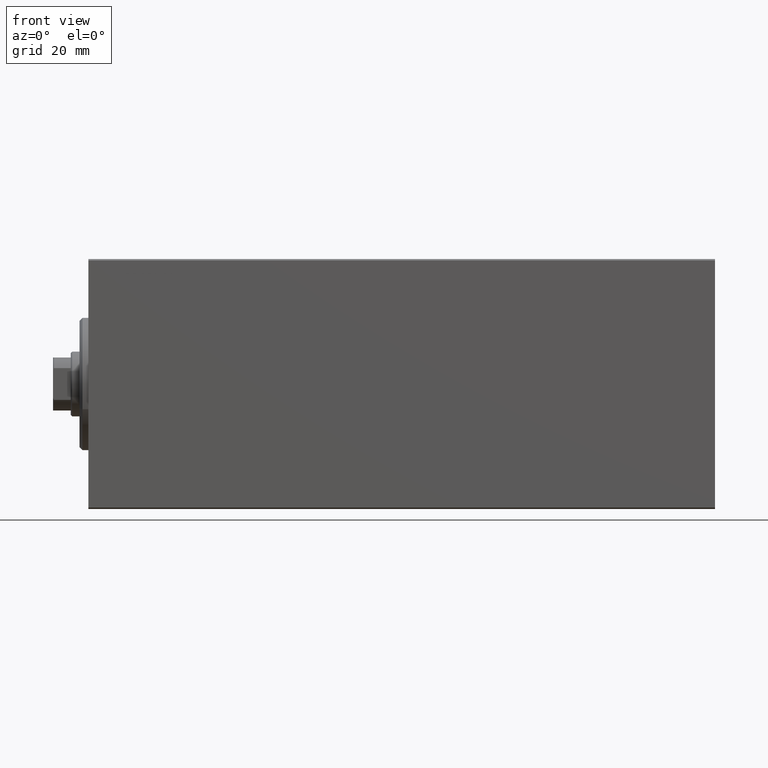
[diagram: clean part render]
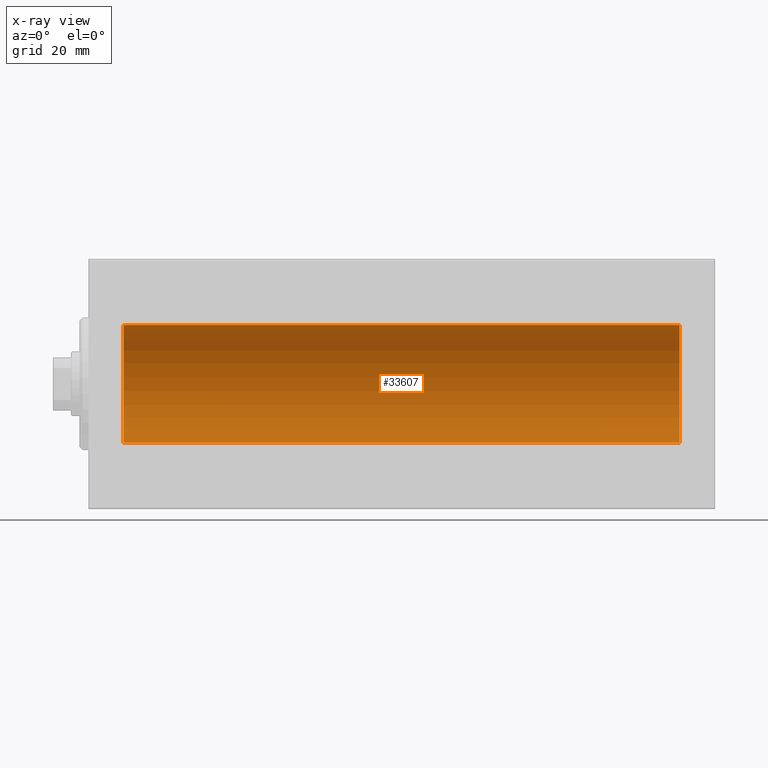
[diagram: x-ray — body ghosted, one internal face saturated and labeled with its STEP entity id]
A machine part, front view, then the same camera in x-ray: the body is ghosted and one INTERNAL B-rep face — a face not visible from any outside direction — is saturated and labeled: STEP entity #33607.
In plain terms, the highlighted cylindrical surface (partial cylindrical patch) has radius 20 mm, axis along (-1, -0, -0).
Its self-contained STEP definition (entity closure, byte-faithful):
#369 = CYLINDRICAL_SURFACE ( 'NONE', #4932, 20.00000000000000000 ) ;
#849 = DIRECTION ( 'NONE',  ( 0.000000000000000000, 0.000000000000000000, 1.000000000000000000 ) ) ;
#1656 = ORIENTED_EDGE ( 'NONE', *, *, #7718, .T. ) ;
#4932 = AXIS2_PLACEMENT_3D ( 'NONE', #7441, #34403, #6992 ) ;
#5772 = CARTESIAN_POINT ( 'NONE',  ( 12.00000000000001066, 0.000000000000000000, 0.000000000000000000 ) ) ;
#6209 = DIRECTION ( 'NONE',  ( -1.000000000000000000, 0.000000000000000000, 0.000000000000000000 ) ) ;
#6427 = DIRECTION ( 'NONE',  ( 0.000000000000000000, 0.000000000000000000, 1.000000000000000000 ) ) ;
#6992 = DIRECTION ( 'NONE',  ( 0.000000000000000000, 0.000000000000000000, 1.000000000000000000 ) ) ;
#7441 = CARTESIAN_POINT ( 'NONE',  ( 201.0000000000000000, 0.000000000000000000, 0.000000000000000000 ) ) ;
#7718 = EDGE_CURVE ( 'NONE', #14629, #39419, #14261, .T. ) ;
#8952 = CARTESIAN_POINT ( 'NONE',  ( 201.0000000000000000, 2.449293598294706513E-15, -20.00000000000000000 ) ) ;
#10545 = FACE_OUTER_BOUND ( 'NONE', #34565, .T. ) ;
#10815 = DIRECTION ( 'NONE',  ( -1.000000000000000000, 0.000000000000000000, 0.000000000000000000 ) ) ;
#10909 = ORIENTED_EDGE ( 'NONE', *, *, #20575, .T. ) ;
#12302 = CIRCLE ( 'NONE', #37715, 20.00000000000000000 ) ;
#12502 = DIRECTION ( 'NONE',  ( -1.000000000000000000, -0.000000000000000000, -0.000000000000000000 ) ) ;
#12935 = LINE ( 'NONE', #8952, #19905 ) ;
#13057 = VERTEX_POINT ( 'NONE', #35391 ) ;
#14261 = CIRCLE ( 'NONE', #43185, 20.00000000000000000 ) ;
#14438 = VECTOR ( 'NONE', #12502, 1000.000000000000000 ) ;
#14629 = VERTEX_POINT ( 'NONE', #37459 ) ;
#18749 = CARTESIAN_POINT ( 'NONE',  ( 201.0000000000000000, 2.449293598294706513E-15, -20.00000000000000000 ) ) ;
#19448 = EDGE_CURVE ( 'NONE', #13057, #32679, #12302, .T. ) ;
#19905 = VECTOR ( 'NONE', #23299, 1000.000000000000000 ) ;
#20575 = EDGE_CURVE ( 'NONE', #13057, #14629, #25750, .T. ) ;
#23299 = DIRECTION ( 'NONE',  ( -1.000000000000000000, -0.000000000000000000, -0.000000000000000000 ) ) ;
#23844 = CARTESIAN_POINT ( 'NONE',  ( 201.0000000000000000, 0.000000000000000000, 0.000000000000000000 ) ) ;
#25750 = LINE ( 'NONE', #39242, #14438 ) ;
#26308 = ORIENTED_EDGE ( 'NONE', *, *, #42640, .F. ) ;
#32679 = VERTEX_POINT ( 'NONE', #18749 ) ;
#33607 = ADVANCED_FACE ( 'NONE', ( #10545 ), #369, .F. ) ;
#34403 = DIRECTION ( 'NONE',  ( -1.000000000000000000, -0.000000000000000000, -0.000000000000000000 ) ) ;
#34565 = EDGE_LOOP ( 'NONE', ( #26308, #41423, #10909, #1656 ) ) ;
#35391 = CARTESIAN_POINT ( 'NONE',  ( 201.0000000000000000, 0.000000000000000000, 20.00000000000000000 ) ) ;
#37459 = CARTESIAN_POINT ( 'NONE',  ( 12.00000000000001066, 0.000000000000000000, 20.00000000000000000 ) ) ;
#37715 = AXIS2_PLACEMENT_3D ( 'NONE', #23844, #10815, #849 ) ;
#39242 = CARTESIAN_POINT ( 'NONE',  ( 201.0000000000000000, 0.000000000000000000, 20.00000000000000000 ) ) ;
#39419 = VERTEX_POINT ( 'NONE', #43407 ) ;
#41423 = ORIENTED_EDGE ( 'NONE', *, *, #19448, .F. ) ;
#42640 = EDGE_CURVE ( 'NONE', #32679, #39419, #12935, .T. ) ;
#43185 = AXIS2_PLACEMENT_3D ( 'NONE', #5772, #6209, #6427 ) ;
#43407 = CARTESIAN_POINT ( 'NONE',  ( 12.00000000000001066, 2.449293598294706513E-15, -20.00000000000000000 ) ) ;